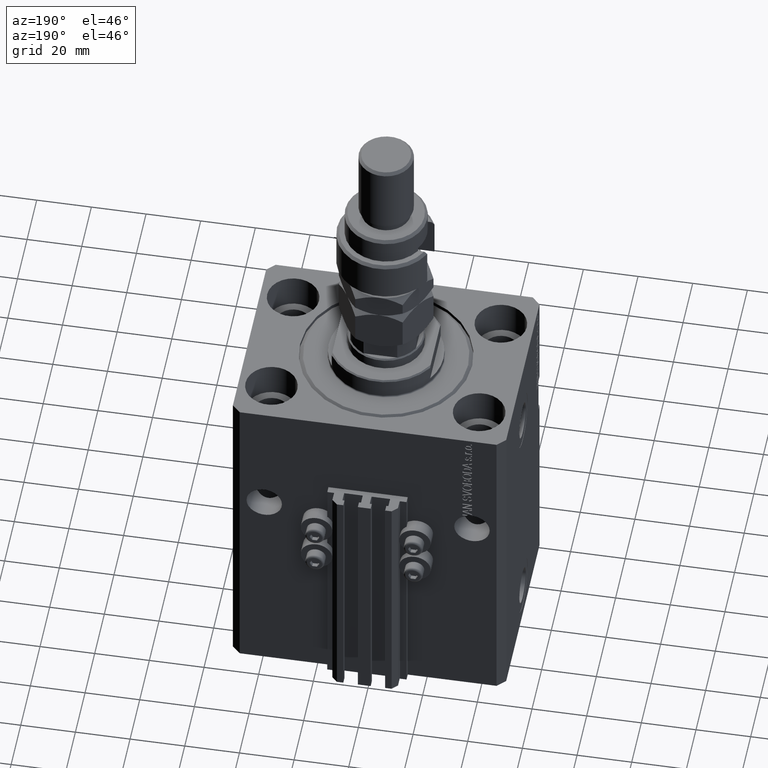
[diagram: clean part render]
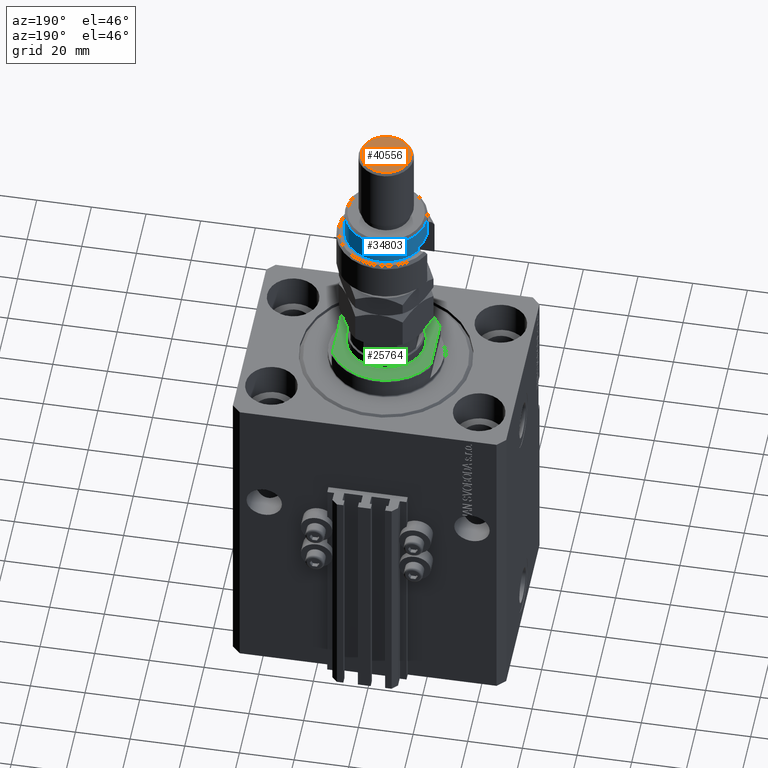
[diagram: same view with three faces highlighted in distinct colors, each labeled with its STEP entity id]
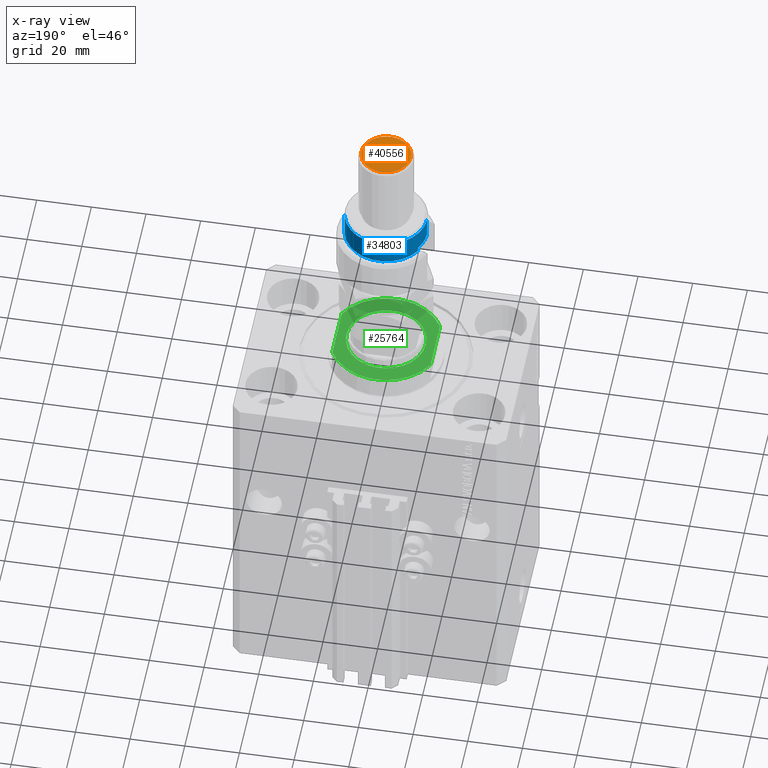
[diagram: x-ray of the same camera — body ghosted, the three highlighted faces saturated]
A machine part, auxiliary view with three faces highlighted in distinct colors.
The next image is the same camera in x-ray (body ghosted, the three faces saturated) — at least one of them is partly hidden behind the body in this view.
Their STEP definitions:

[orange] entity #40556 — the highlighted planar face has unit normal (0, 0, 1).
#315 = DIRECTION ( 'NONE',  ( 0.000000000000000000, 0.000000000000000000, 1.000000000000000000 ) ) ;
#485 = CIRCLE ( 'NONE', #46290, 8.999999999999987566 ) ;
#2121 = CARTESIAN_POINT ( 'NONE',  ( 0.000000000000000000, 0.000000000000000000, 56.00000000000000711 ) ) ;
#2245 = AXIS2_PLACEMENT_3D ( 'NONE', #8538, #39706, #4717 ) ;
#3570 = CIRCLE ( 'NONE', #6851, 8.999999999999987566 ) ;
#4050 = EDGE_CURVE ( 'NONE', #49352, #25297, #3570, .T. ) ;
#4717 = DIRECTION ( 'NONE',  ( 1.000000000000000000, 0.000000000000000000, -0.000000000000000000 ) ) ;
#6455 = ORIENTED_EDGE ( 'NONE', *, *, #40844, .T. ) ;
#6851 = AXIS2_PLACEMENT_3D ( 'NONE', #2121, #9281, #40440 ) ;
#8538 = CARTESIAN_POINT ( 'NONE',  ( 0.000000000000000000, 0.000000000000000000, 56.00000000000000711 ) ) ;
#8545 = ORIENTED_EDGE ( 'NONE', *, *, #4050, .T. ) ;
#9281 = DIRECTION ( 'NONE',  ( 0.000000000000000000, 0.000000000000000000, 1.000000000000000000 ) ) ;
#12074 = DIRECTION ( 'NONE',  ( 1.000000000000000000, 0.000000000000000000, 0.000000000000000000 ) ) ;
#16956 = CARTESIAN_POINT ( 'NONE',  ( 8.999999999999987566, 1.163414459189984894E-15, 56.00000000000000711 ) ) ;
#17588 = EDGE_LOOP ( 'NONE', ( #8545, #6455 ) ) ;
#17922 = CARTESIAN_POINT ( 'NONE',  ( -8.999999999999987566, 0.000000000000000000, 56.00000000000000711 ) ) ;
#25297 = VERTEX_POINT ( 'NONE', #16956 ) ;
#35302 = CARTESIAN_POINT ( 'NONE',  ( 0.000000000000000000, 0.000000000000000000, 56.00000000000000711 ) ) ;
#39706 = DIRECTION ( 'NONE',  ( 0.000000000000000000, 0.000000000000000000, 1.000000000000000000 ) ) ;
#40202 = PLANE ( 'NONE',  #2245 ) ;
#40440 = DIRECTION ( 'NONE',  ( 1.000000000000000000, 0.000000000000000000, 0.000000000000000000 ) ) ;
#40556 = ADVANCED_FACE ( 'NONE', ( #43532 ), #40202, .T. ) ;
#40844 = EDGE_CURVE ( 'NONE', #25297, #49352, #485, .T. ) ;
#43532 = FACE_OUTER_BOUND ( 'NONE', #17588, .T. ) ;
#46290 = AXIS2_PLACEMENT_3D ( 'NONE', #35302, #315, #12074 ) ;
#49352 = VERTEX_POINT ( 'NONE', #17922 ) ;

[blue] entity #34803 — the highlighted cylindrical surface (partial cylindrical patch) has radius 15 mm, axis along (-0, -0, -1).
#1870 = CARTESIAN_POINT ( 'NONE',  ( 0.000000000000000000, 0.000000000000000000, 17.50000000000000000 ) ) ;
#2284 = DIRECTION ( 'NONE',  ( -0.000000000000000000, -0.000000000000000000, -1.000000000000000000 ) ) ;
#2587 = CARTESIAN_POINT ( 'NONE',  ( 0.000000000000000000, 0.000000000000000000, 26.00000000000000355 ) ) ;
#4046 = EDGE_CURVE ( 'NONE', #17002, #41891, #32101, .T. ) ;
#4461 = DIRECTION ( 'NONE',  ( 0.000000000000000000, 0.000000000000000000, -1.000000000000000000 ) ) ;
#4908 = EDGE_CURVE ( 'NONE', #27417, #36876, #40849, .T. ) ;
#5196 = DIRECTION ( 'NONE',  ( -1.000000000000000000, 0.000000000000000000, 0.000000000000000000 ) ) ;
#5724 = EDGE_CURVE ( 'NONE', #43585, #17002, #45446, .T. ) ;
#6878 = VECTOR ( 'NONE', #2284, 1000.000000000000000 ) ;
#8340 = VECTOR ( 'NONE', #28785, 1000.000000000000000 ) ;
#10596 = CARTESIAN_POINT ( 'NONE',  ( 15.00000000000000000, 1.836970198721029589E-15, 16.00000000000000000 ) ) ;
#10727 = CARTESIAN_POINT ( 'NONE',  ( -15.00000000000000000, 0.000000000000000000, 17.50000000000000000 ) ) ;
#11157 = AXIS2_PLACEMENT_3D ( 'NONE', #50393, #15430, #30976 ) ;
#11958 = CIRCLE ( 'NONE', #11157, 15.00000000000000000 ) ;
#12733 = ORIENTED_EDGE ( 'NONE', *, *, #27574, .T. ) ;
#13267 = EDGE_CURVE ( 'NONE', #36876, #23791, #11958, .T. ) ;
#15418 = CIRCLE ( 'NONE', #30090, 15.00000000000000000 ) ;
#15430 = DIRECTION ( 'NONE',  ( 0.000000000000000000, 0.000000000000000000, 1.000000000000000000 ) ) ;
#16928 = CARTESIAN_POINT ( 'NONE',  ( 15.00000000000000000, 1.836970198721029589E-15, 24.99999999999997868 ) ) ;
#17002 = VERTEX_POINT ( 'NONE', #10727 ) ;
#17855 = DIRECTION ( 'NONE',  ( -0.000000000000000000, -0.000000000000000000, -1.000000000000000000 ) ) ;
#19067 = EDGE_CURVE ( 'NONE', #43585, #27417, #15418, .T. ) ;
#20151 = ORIENTED_EDGE ( 'NONE', *, *, #19067, .T. ) ;
#20979 = FACE_OUTER_BOUND ( 'NONE', #42633, .T. ) ;
#21184 = CARTESIAN_POINT ( 'NONE',  ( -15.00000000000000000, 0.000000000000000000, 26.00000000000000355 ) ) ;
#21216 = ORIENTED_EDGE ( 'NONE', *, *, #4908, .T. ) ;
#21433 = CARTESIAN_POINT ( 'NONE',  ( 15.00000000000000000, 1.836970198721029589E-15, 26.00000000000000355 ) ) ;
#23791 = VERTEX_POINT ( 'NONE', #45578 ) ;
#25814 = DIRECTION ( 'NONE',  ( -0.000000000000000000, -0.000000000000000000, -1.000000000000000000 ) ) ;
#27417 = VERTEX_POINT ( 'NONE', #16928 ) ;
#27574 = EDGE_CURVE ( 'NONE', #23791, #41891, #36475, .T. ) ;
#28663 = DIRECTION ( 'NONE',  ( 0.000000000000000000, 0.000000000000000000, -1.000000000000000000 ) ) ;
#28785 = DIRECTION ( 'NONE',  ( 0.000000000000000000, 0.000000000000000000, 1.000000000000000000 ) ) ;
#28863 = CARTESIAN_POINT ( 'NONE',  ( -15.00000000000000000, 0.000000000000000000, 24.99999999999997868 ) ) ;
#29384 = DIRECTION ( 'NONE',  ( -1.000000000000000000, 0.000000000000000000, 0.000000000000000000 ) ) ;
#30090 = AXIS2_PLACEMENT_3D ( 'NONE', #42349, #4461, #42092 ) ;
#30544 = CARTESIAN_POINT ( 'NONE',  ( -12.99038105676658006, 7.500000000000000000, 17.50000000000000000 ) ) ;
#30976 = DIRECTION ( 'NONE',  ( 1.000000000000000000, 0.000000000000000000, 0.000000000000000000 ) ) ;
#32101 = CIRCLE ( 'NONE', #41096, 15.00000000000000000 ) ;
#34803 = ADVANCED_FACE ( 'NONE', ( #20979 ), #36563, .T. ) ;
#36475 = LINE ( 'NONE', #41068, #8340 ) ;
#36563 = CYLINDRICAL_SURFACE ( 'NONE', #37900, 15.00000000000000000 ) ;
#36876 = VERTEX_POINT ( 'NONE', #10596 ) ;
#37075 = VECTOR ( 'NONE', #17855, 1000.000000000000000 ) ;
#37900 = AXIS2_PLACEMENT_3D ( 'NONE', #2587, #25814, #29384 ) ;
#40849 = LINE ( 'NONE', #21433, #37075 ) ;
#41068 = CARTESIAN_POINT ( 'NONE',  ( -12.99038105676658006, 7.500000000000000000, 26.00000000000000355 ) ) ;
#41096 = AXIS2_PLACEMENT_3D ( 'NONE', #1870, #28663, #5196 ) ;
#41406 = ORIENTED_EDGE ( 'NONE', *, *, #4046, .F. ) ;
#41891 = VERTEX_POINT ( 'NONE', #30544 ) ;
#42092 = DIRECTION ( 'NONE',  ( 1.000000000000000000, 0.000000000000000000, 0.000000000000000000 ) ) ;
#42349 = CARTESIAN_POINT ( 'NONE',  ( 0.000000000000000000, 0.000000000000000000, 24.99999999999997868 ) ) ;
#42633 = EDGE_LOOP ( 'NONE', ( #20151, #21216, #45926, #12733, #41406, #43770 ) ) ;
#43585 = VERTEX_POINT ( 'NONE', #28863 ) ;
#43770 = ORIENTED_EDGE ( 'NONE', *, *, #5724, .F. ) ;
#45446 = LINE ( 'NONE', #21184, #6878 ) ;
#45578 = CARTESIAN_POINT ( 'NONE',  ( -12.99038105676658006, 7.500000000000000000, 16.00000000000000000 ) ) ;
#45926 = ORIENTED_EDGE ( 'NONE', *, *, #13267, .T. ) ;
#50393 = CARTESIAN_POINT ( 'NONE',  ( 0.000000000000000000, 0.000000000000000000, 16.00000000000000000 ) ) ;

[green] entity #25764 — the highlighted planar face has unit normal (0, 0, 1).
#258 = CIRCLE ( 'NONE', #1895, 20.50000000000000355 ) ;
#1403 = AXIS2_PLACEMENT_3D ( 'NONE', #38880, #34786, #50352 ) ;
#1895 = AXIS2_PLACEMENT_3D ( 'NONE', #4539, #39277, #35196 ) ;
#1983 = DIRECTION ( 'NONE',  ( 0.000000000000000000, 0.000000000000000000, -1.000000000000000000 ) ) ;
#2140 = EDGE_CURVE ( 'NONE', #29039, #37452, #258, .T. ) ;
#2470 = AXIS2_PLACEMENT_3D ( 'NONE', #32281, #28448, #13148 ) ;
#3592 = PLANE ( 'NONE',  #35088 ) ;
#3619 = CARTESIAN_POINT ( 'NONE',  ( -18.00000000000000000, -9.810708435174301911, -8.000000000000000000 ) ) ;
#4539 = CARTESIAN_POINT ( 'NONE',  ( 0.000000000000000000, 0.000000000000000000, -8.000000000000000000 ) ) ;
#6913 = DIRECTION ( 'NONE',  ( 0.000000000000000000, 0.000000000000000000, -1.000000000000000000 ) ) ;
#7338 = EDGE_CURVE ( 'NONE', #25940, #37452, #15173, .T. ) ;
#7809 = AXIS2_PLACEMENT_3D ( 'NONE', #37223, #1983, #33116 ) ;
#9294 = LINE ( 'NONE', #21546, #29711 ) ;
#10591 = CARTESIAN_POINT ( 'NONE',  ( -18.00000000000000000, -41.24318125460256113, -8.000000000000000000 ) ) ;
#11914 = CARTESIAN_POINT ( 'NONE',  ( -14.49999999999998579, 0.000000000000000000, -8.000000000000000000 ) ) ;
#13148 = DIRECTION ( 'NONE',  ( -1.000000000000000000, 0.000000000000000000, 0.000000000000000000 ) ) ;
#13834 = VERTEX_POINT ( 'NONE', #11914 ) ;
#15173 = LINE ( 'NONE', #10591, #36302 ) ;
#15348 = FACE_BOUND ( 'NONE', #48121, .T. ) ;
#20025 = CIRCLE ( 'NONE', #7809, 20.50000000000000355 ) ;
#21546 = CARTESIAN_POINT ( 'NONE',  ( 18.00000000000000000, -41.24318125460256113, -8.000000000000000000 ) ) ;
#21656 = EDGE_CURVE ( 'NONE', #31644, #13834, #31795, .T. ) ;
#22692 = CARTESIAN_POINT ( 'NONE',  ( -18.00000000000000000, 9.810708435174301911, -8.000000000000000000 ) ) ;
#24052 = ORIENTED_EDGE ( 'NONE', *, *, #34389, .T. ) ;
#24289 = CARTESIAN_POINT ( 'NONE',  ( 18.00000000000000000, -9.810708435174301911, -8.000000000000000000 ) ) ;
#25241 = ORIENTED_EDGE ( 'NONE', *, *, #21656, .T. ) ;
#25764 = ADVANCED_FACE ( 'NONE', ( #15348, #46247 ), #3592, .T. ) ;
#25920 = EDGE_LOOP ( 'NONE', ( #31070, #24052, #27068, #28318 ) ) ;
#25940 = VERTEX_POINT ( 'NONE', #22692 ) ;
#27068 = ORIENTED_EDGE ( 'NONE', *, *, #2140, .T. ) ;
#28318 = ORIENTED_EDGE ( 'NONE', *, *, #7338, .F. ) ;
#28448 = DIRECTION ( 'NONE',  ( -0.000000000000000000, -0.000000000000000000, 1.000000000000000000 ) ) ;
#29039 = VERTEX_POINT ( 'NONE', #24289 ) ;
#29184 = DIRECTION ( 'NONE',  ( 0.000000000000000000, -1.000000000000000000, -0.000000000000000000 ) ) ;
#29711 = VECTOR ( 'NONE', #29184, 1000.000000000000000 ) ;
#30418 = CARTESIAN_POINT ( 'NONE',  ( 14.49999999999998579, 1.775737858763660437E-15, -8.000000000000000000 ) ) ;
#31070 = ORIENTED_EDGE ( 'NONE', *, *, #36525, .T. ) ;
#31644 = VERTEX_POINT ( 'NONE', #30418 ) ;
#31795 = CIRCLE ( 'NONE', #2470, 14.49999999999998579 ) ;
#32281 = CARTESIAN_POINT ( 'NONE',  ( 0.000000000000000000, 0.000000000000000000, -8.000000000000000000 ) ) ;
#33116 = DIRECTION ( 'NONE',  ( -1.000000000000000000, 0.000000000000000000, 0.000000000000000000 ) ) ;
#34034 = CIRCLE ( 'NONE', #1403, 14.49999999999998579 ) ;
#34069 = DIRECTION ( 'NONE',  ( -0.000000000000000000, -1.000000000000000000, -0.000000000000000000 ) ) ;
#34389 = EDGE_CURVE ( 'NONE', #47702, #29039, #9294, .T. ) ;
#34495 = CARTESIAN_POINT ( 'NONE',  ( 0.000000000000000000, 0.000000000000000000, -8.000000000000000000 ) ) ;
#34786 = DIRECTION ( 'NONE',  ( -0.000000000000000000, -0.000000000000000000, 1.000000000000000000 ) ) ;
#35088 = AXIS2_PLACEMENT_3D ( 'NONE', #34495, #6913, #49809 ) ;
#35196 = DIRECTION ( 'NONE',  ( -1.000000000000000000, 0.000000000000000000, 0.000000000000000000 ) ) ;
#36302 = VECTOR ( 'NONE', #34069, 1000.000000000000000 ) ;
#36525 = EDGE_CURVE ( 'NONE', #25940, #47702, #20025, .T. ) ;
#37223 = CARTESIAN_POINT ( 'NONE',  ( 0.000000000000000000, 0.000000000000000000, -8.000000000000000000 ) ) ;
#37452 = VERTEX_POINT ( 'NONE', #3619 ) ;
#38880 = CARTESIAN_POINT ( 'NONE',  ( 0.000000000000000000, 0.000000000000000000, -8.000000000000000000 ) ) ;
#39277 = DIRECTION ( 'NONE',  ( 0.000000000000000000, 0.000000000000000000, -1.000000000000000000 ) ) ;
#39437 = EDGE_CURVE ( 'NONE', #13834, #31644, #34034, .T. ) ;
#46247 = FACE_OUTER_BOUND ( 'NONE', #25920, .T. ) ;
#47702 = VERTEX_POINT ( 'NONE', #50235 ) ;
#48121 = EDGE_LOOP ( 'NONE', ( #50292, #25241 ) ) ;
#49809 = DIRECTION ( 'NONE',  ( -1.000000000000000000, 0.000000000000000000, -0.000000000000000000 ) ) ;
#50235 = CARTESIAN_POINT ( 'NONE',  ( 18.00000000000000000, 9.810708435174301911, -8.000000000000000000 ) ) ;
#50292 = ORIENTED_EDGE ( 'NONE', *, *, #39437, .T. ) ;
#50352 = DIRECTION ( 'NONE',  ( -1.000000000000000000, 0.000000000000000000, 0.000000000000000000 ) ) ;